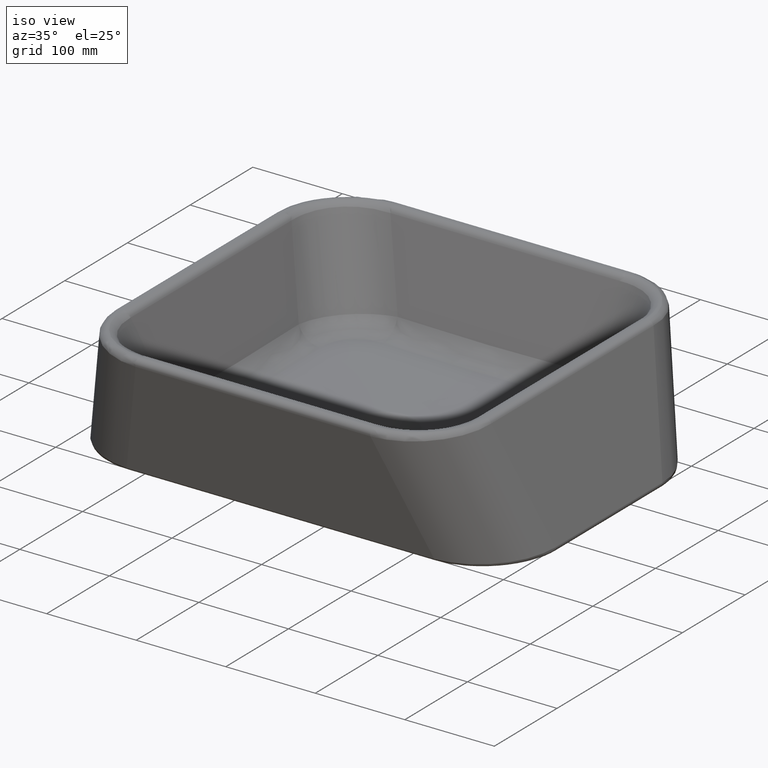
[diagram: clean part render]
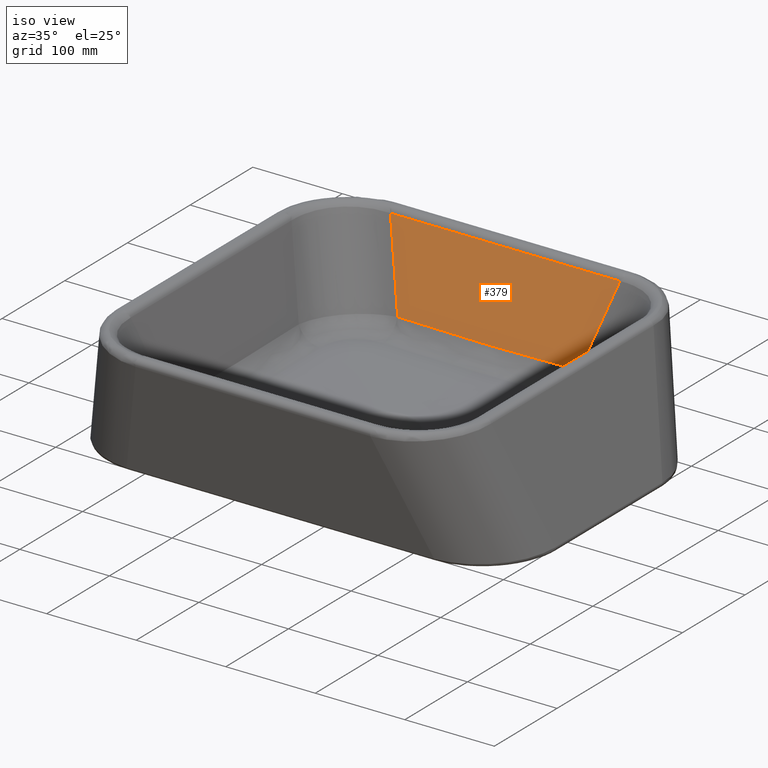
[diagram: same view with one face highlighted and labeled with its STEP entity id]
A machine part, iso view. The second image highlights one B-rep face of the part: STEP entity #379.
In plain terms, the highlighted planar face has unit normal (0, 0.9558, -0.2942).
Its self-contained STEP definition (entity closure, byte-faithful):
#192=FACE_OUTER_BOUND('',#480,.T.);
#262=PLANE('',#1248);
#301=LINE('',#2006,#341);
#302=LINE('',#2027,#342);
#303=LINE('',#2029,#343);
#341=VECTOR('',#1353,1.);
#342=VECTOR('',#1356,1.);
#343=VECTOR('',#1357,1.);
#379=ADVANCED_FACE('',(#192),#262,.F.);
#480=EDGE_LOOP('',(#587,#588,#589,#590));
#587=ORIENTED_EDGE('',*,*,#1025,.T.);
#588=ORIENTED_EDGE('',*,*,#1027,.T.);
#589=ORIENTED_EDGE('',*,*,#1028,.T.);
#590=ORIENTED_EDGE('',*,*,#1029,.T.);
#925=VERTEX_POINT('',#2005);
#926=VERTEX_POINT('',#2007);
#927=VERTEX_POINT('',#2028);
#928=VERTEX_POINT('',#2030);
#1025=EDGE_CURVE('',#926,#925,#301,.T.);
#1027=EDGE_CURVE('',#925,#927,#302,.T.);
#1028=EDGE_CURVE('',#927,#928,#303,.T.);
#1029=EDGE_CURVE('',#928,#926,#1186,.T.);
#1186=B_SPLINE_CURVE_WITH_KNOTS('',3,(#2031,#2032,#2033,#2034,#2035),
 .UNSPECIFIED.,.F.,.F.,(4,1,4),(0.,0.5,1.),.UNSPECIFIED.);
#1248=AXIS2_PLACEMENT_3D('',#2036,#1358,#1359);
#1353=DIRECTION('',(-0.282204189228226,-0.282204189228227,-0.916908714738866));
#1356=DIRECTION('',(0.,1.,0.));
#1357=DIRECTION('',(0.282204189228226,-0.282204189228227,0.916908714738866));
#1358=DIRECTION('',(-0.95575602636285,0.,0.294160531123902));
#1359=DIRECTION('',(0.294160531123902,0.,0.95575602636285));
#2005=CARTESIAN_POINT('',(76.4937540066123,-1004.3928944754,94.8366251321796));
#2006=CARTESIAN_POINT('',(69.5799558257345,-1011.30669265628,72.3730259158482));
#2007=CARTESIAN_POINT('',(103.371757991478,-977.514890490536,182.165860590758));
#2027=CARTESIAN_POINT('',(76.4937540066123,-634.205383724924,94.8366251321797));
#2028=CARTESIAN_POINT('',(76.4937540066123,-748.017872974446,94.8366251321797));
#2029=CARTESIAN_POINT('',(107.747089999678,-779.271208967511,196.381737609331));
#2030=CARTESIAN_POINT('',(103.371757991478,-774.895876959311,182.165860590758));
#2031=CARTESIAN_POINT('',(103.371757991478,-774.895876959311,182.165860590758));
#2032=CARTESIAN_POINT('',(103.583921571202,-808.665712547849,182.855200588621));
#2033=CARTESIAN_POINT('',(103.862761174719,-876.205383724924,183.761177438852));
#2034=CARTESIAN_POINT('',(103.583921571202,-943.745054901999,182.855200588621));
#2035=CARTESIAN_POINT('',(103.371757991478,-977.514890490536,182.165860590758));
#2036=CARTESIAN_POINT('',(75.9327892261563,-634.205383724924,93.0139962857816));